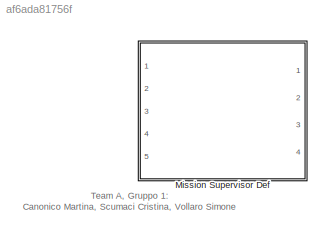
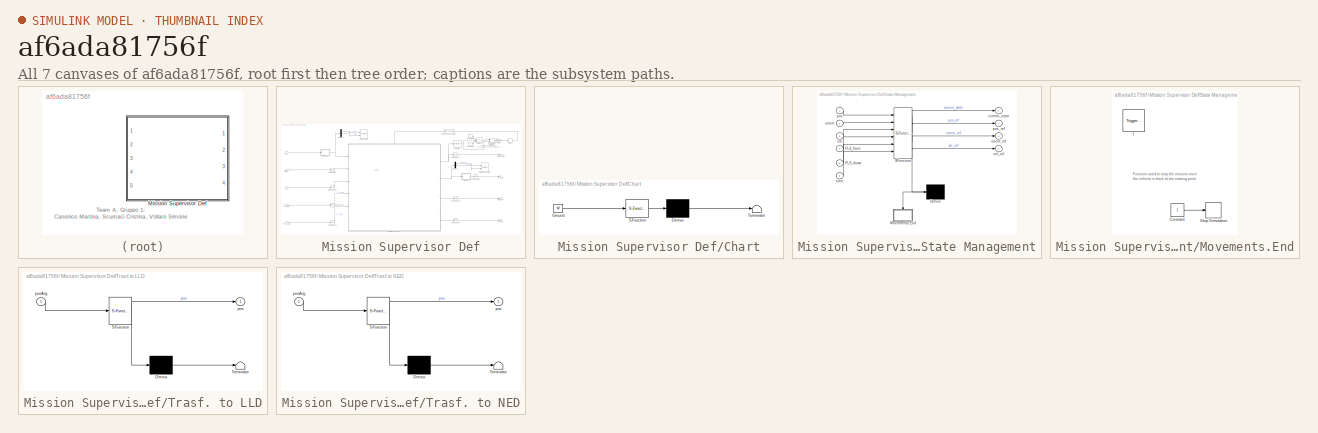
[diagram: thumbnail index - all 7 canvases of the model, root first then tree order]
MODEL slx_af6ada81756f
KIND model
CONFIG AbsTol = auto
CONFIG EnableMultiTasking = off
CONFIG FixedStep = auto
CONFIG MaxStep = auto
CONFIG MinStep = auto
CONFIG RelTol = 1e-3
CONFIG SampleTimeConstraint = Unconstrained
CONFIG Solver = VariableStepAuto
CONFIG SolverName = VariableStepAuto
CONFIG StartTime = 0.0
CONFIG StopTime = 10.0
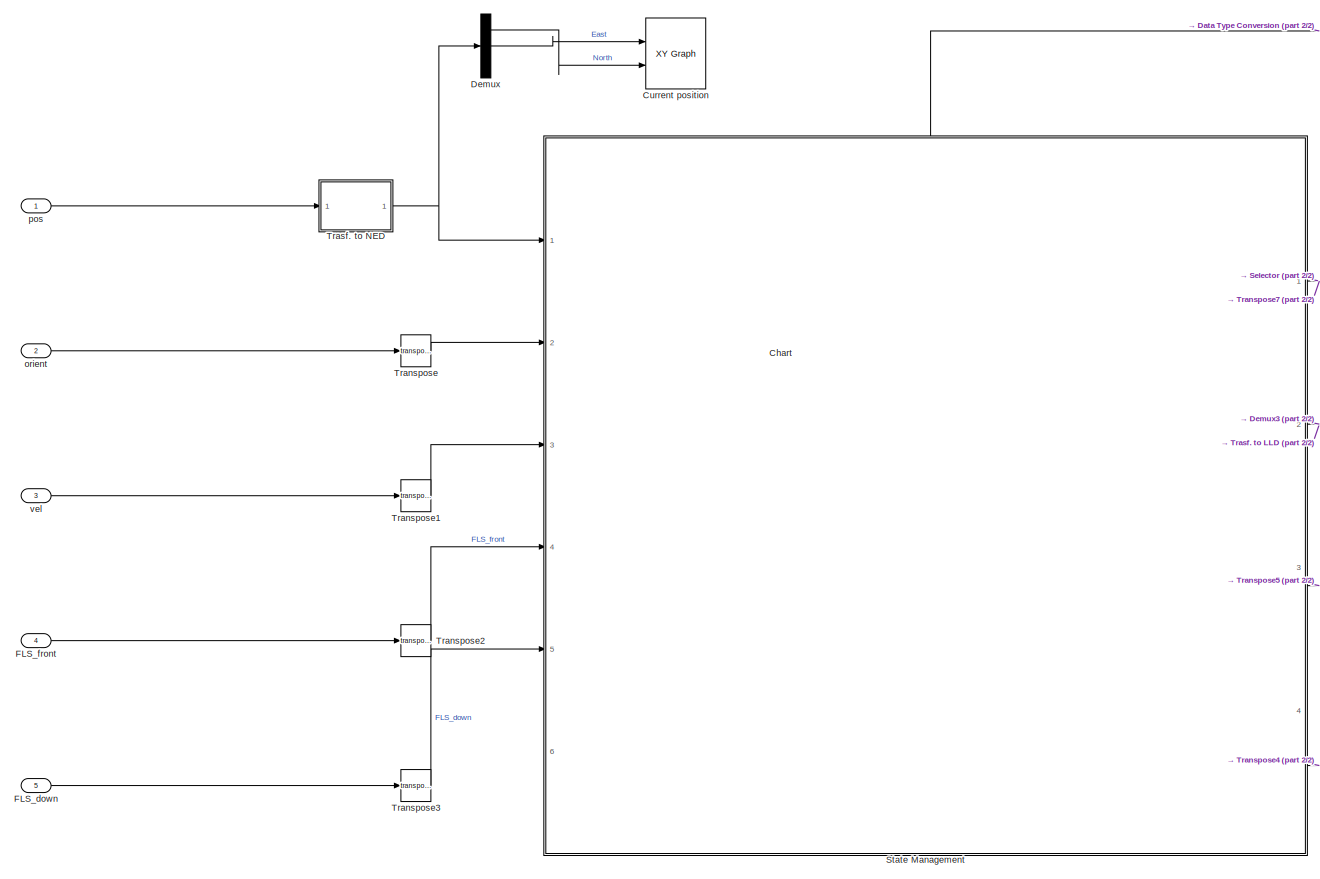
[diagram: Mission Supervisor Def - part 1/2, center side, full height]
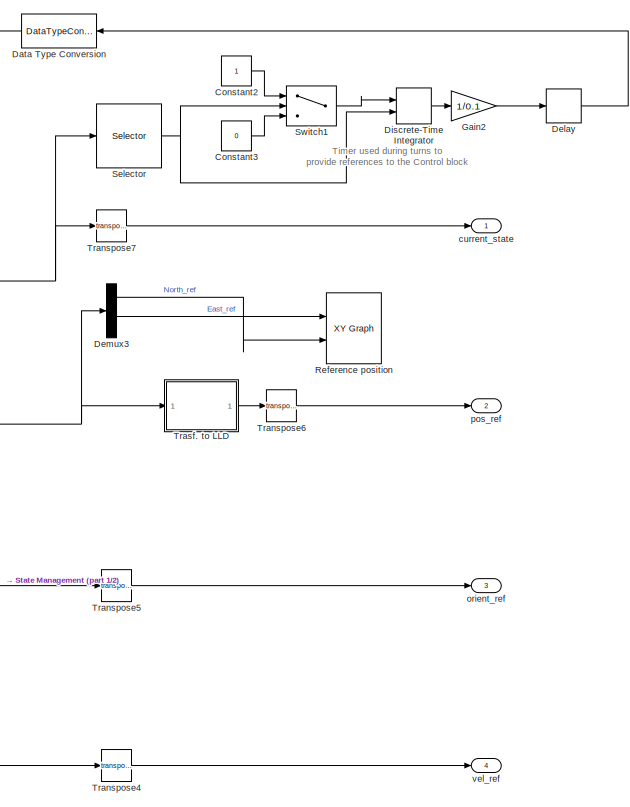
[diagram: Mission Supervisor Def - part 2/2, right side, full height]
BLOCK [SubSystem] Mission Supervisor Def
  Ports = [5, 4]
  RequestExecContextInheritance = off
BLOCK [SubSystem] Mission Supervisor Def/Chart
  ErrorFcn = Stateflow.Translate.translate
  PermitHierarchicalResolution = ExplicitOnly
  Ports = []
  RequestExecContextInheritance = off
  SFBlockType = Chart
  TreatAsAtomicUnit = on
BLOCK [Demux] Mission Supervisor Def/Chart/ Demux 
  Outputs = 1
  Ports = [1, 1]
BLOCK [Ground] Mission Supervisor Def/Chart/ Ground 
BLOCK [S-Function] Mission Supervisor Def/Chart/ SFunction 
  EnableBusSupport = on
  FunctionName = sf_sfun
  PortCounts = [1 1]
  Ports = [1, 1]
  SFcnIsStateOwnerBlock = off
  SFunctionDeploymentMode = off
  Tag = Stateflow S-Function 50
BLOCK [Terminator] Mission Supervisor Def/Chart/ Terminator 
BLOCK [Constant] Mission Supervisor Def/Constant2
BLOCK [Constant] Mission Supervisor Def/Constant3
  Value = 0
BLOCK [Reference] Mission Supervisor Def/Current position  REF=simulink/Sinks/XY Graph
  Commented = on
  Ports = [2]
  SourceBlock = simulink/Sinks/XY Graph
  SourceProductBaseCode = SL
  SourceType = XY scope.
BLOCK [DataTypeConversion] Mission Supervisor Def/Data Type Conversion
  OutDataTypeStr = int64
  RndMeth = Floor
  SaturateOnIntegerOverflow = off
BLOCK [Delay] Mission Supervisor Def/Delay
  DelayLength = 1
  InputPortMap = u0
  Ports = [1, 1]
  SampleTime = 0.1
BLOCK [Demux] Mission Supervisor Def/Demux
  Commented = on
  Outputs = 3
  Ports = [1, 3]
BLOCK [Demux] Mission Supervisor Def/Demux3
  Commented = on
  Outputs = 3
  Ports = [1, 3]
BLOCK [DiscreteIntegrator] Mission Supervisor Def/Discrete-Time Integrator
  ExternalReset = falling
  ICPrevOutput = DiscIntNeverNeededParam
  ICPrevScaledInput = DiscIntNeverNeededParam
  InitialConditionSetting = Auto
  Ports = [2, 1]
  SampleTime = 0.1
BLOCK [Inport] Mission Supervisor Def/FLS_down
  Port = 5
  PortDimensions = 1
BLOCK [Inport] Mission Supervisor Def/FLS_front
  Port = 4
  PortDimensions = 1
BLOCK [Gain] Mission Supervisor Def/Gain2
  Gain = 1/0.1
BLOCK [Reference] Mission Supervisor Def/Reference position  REF=simulink/Sinks/XY Graph
  Commented = on
  Ports = [2]
  SourceBlock = simulink/Sinks/XY Graph
  SourceProductBaseCode = SL
  SourceType = XY scope.
BLOCK [Selector] Mission Supervisor Def/Selector
  IndexOptions = Index vector (dialog)
  Indices = 4
  InputPortWidth = 8
  OutputSizes = 1
  Ports = [1, 1]
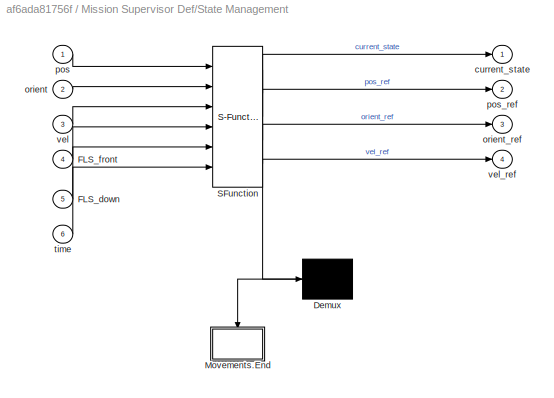
BLOCK [SubSystem] Mission Supervisor Def/State Management
  ErrorFcn = Stateflow.Translate.translate
  PermitHierarchicalResolution = ExplicitOnly
  PortSchema = {"entries":[{"content":{"sides":[{"content":{"connectorIds":["In1","In2","In3","In4","In5"]},"type":"ConnectorPlacement.EquallySpacedRectSide","uuid":"b4d768e0-b402-4324-9a12-614211dc6b85"},{"content":{"connectorIds":["Out1","Out2","Out3","Out4"],"side":"RIGHT"},"type":"ConnectorPlacement.EquallySpacedRectSide","uuid":"64a4c54a-28a4-456f-aa67-ad7da5d6855f"},{"content":{"connectorIds":["In6"],"side...<+292ch>
  Ports = [6, 4]
  RequestExecContextInheritance = off
  SFBlockType = Chart
  TreatAsAtomicUnit = on
BLOCK [Demux] Mission Supervisor Def/State Management/ Demux 
  Outputs = 1
  Ports = [1, 1]
BLOCK [S-Function] Mission Supervisor Def/State Management/ SFunction 
  EnableBusSupport = on
  FunctionName = sf_sfun
  Parameters = altitude,averageDepth,cruiseSpeed,distEmerg,endDiv,errOrDiv,errOrPos,errOrSurf,errOrTrans,errOrWPTrans,errPosDiv,errPosPos,errPosSurf,errPosTrans,errPosTransLast,errPosWPTrans,errSphere,errVelDiv,errVelSurf,lineSpaceBetweenTransects,maxRatio,minDist,minGap,nTran,nWPTran,nWPTurn,offset,offsetLast,orDes,orDesRit,orDispari,orPari,orientA,pointA,pointP,rot,safeMargin,semix,semiy,semiz,theta_f,trWP,tur...<+69ch>
  PortCounts = [6 5]
  Ports = [6, 5]
  SFcnIsStateOwnerBlock = off
  SFunctionDeploymentMode = off
  Tag = Stateflow S-Function 51
BLOCK [Inport] Mission Supervisor Def/State Management/FLS_down
  Port = 5
BLOCK [Inport] Mission Supervisor Def/State Management/FLS_front
  Port = 4
BLOCK [SubSystem] Mission Supervisor Def/State Management/Movements.End
  Ports = [0, 0, 0, 1]
  PreDeleteFcn = Stateflow.SLINSF.SimulinkMan.removePreDeleteFcn
  RequestExecContextInheritance = off
  UndoDeleteFcn = Stateflow.SLINSF.SimulinkMan.restorePreDeleteFcn
BLOCK [Constant] Mission Supervisor Def/State Management/Movements.End/Constant
BLOCK [Stop] Mission Supervisor Def/State Management/Movements.End/Stop Simulation
BLOCK [TriggerPort] Mission Supervisor Def/State Management/Movements.End/f
  CopyFcn = Stateflow.SLINSF.SimulinkMan.removeBlockPreDeleteFcn
  Ports = []
  PreDeleteFcn = Stateflow.SLINSF.SimulinkMan.unsafePredeleteFcn
  StatesWhenEnabling = held
  TriggerType = function-call
  VariantControl = (inherit)
BLOCK [Outport] Mission Supervisor Def/State Management/current_state
BLOCK [Inport] Mission Supervisor Def/State Management/orient
  Port = 2
BLOCK [Outport] Mission Supervisor Def/State Management/orient_ref
  Port = 3
BLOCK [Inport] Mission Supervisor Def/State Management/pos
BLOCK [Outport] Mission Supervisor Def/State Management/pos_ref
  Port = 2
BLOCK [Inport] Mission Supervisor Def/State Management/time
  Port = 6
BLOCK [Inport] Mission Supervisor Def/State Management/vel
  Port = 3
BLOCK [Outport] Mission Supervisor Def/State Management/vel_ref
  Port = 4
BLOCK [Switch] Mission Supervisor Def/Switch1
  Criteria = u2 > Threshold
  InputSameDT = off
  SaturateOnIntegerOverflow = off
BLOCK [Math] Mission Supervisor Def/Transpose
  Operator = transpose
  Ports = [1, 1]
BLOCK [Math] Mission Supervisor Def/Transpose1
  Operator = transpose
  Ports = [1, 1]
BLOCK [Math] Mission Supervisor Def/Transpose2
  Operator = transpose
  Ports = [1, 1]
BLOCK [Math] Mission Supervisor Def/Transpose3
  Operator = transpose
  Ports = [1, 1]
BLOCK [Math] Mission Supervisor Def/Transpose4
  Operator = transpose
  Ports = [1, 1]
BLOCK [Math] Mission Supervisor Def/Transpose5
  Operator = transpose
  Ports = [1, 1]
BLOCK [Math] Mission Supervisor Def/Transpose6
  Operator = transpose
  Ports = [1, 1]
BLOCK [Math] Mission Supervisor Def/Transpose7
  Operator = transpose
  Ports = [1, 1]
BLOCK [SubSystem] Mission Supervisor Def/Trasf. to LLD
  ErrorFcn = Stateflow.Translate.translate
  PermitHierarchicalResolution = ExplicitOnly
  Ports = [1, 1]
  RequestExecContextInheritance = off
  SFBlockType = MATLAB Function
  TreatAsAtomicUnit = on
BLOCK [Demux] Mission Supervisor Def/Trasf. to LLD/ Demux 
  Outputs = 1
  Ports = [1, 1]
BLOCK [S-Function] Mission Supervisor Def/Trasf. to LLD/ SFunction 
  EnableBusSupport = on
  FunctionName = sf_sfun
  Parameters = areaOfInterestCorner
  PortCounts = [1 2]
  Ports = [1, 2]
  SFcnIsStateOwnerBlock = off
  SFunctionDeploymentMode = off
  Tag = Stateflow S-Function 53
BLOCK [Terminator] Mission Supervisor Def/Trasf. to LLD/ Terminator 
BLOCK [Outport] Mission Supervisor Def/Trasf. to LLD/pos
BLOCK [Inport] Mission Supervisor Def/Trasf. to LLD/posArg
BLOCK [SubSystem] Mission Supervisor Def/Trasf. to NED
  ErrorFcn = Stateflow.Translate.translate
  PermitHierarchicalResolution = ExplicitOnly
  Ports = [1, 1]
  RequestExecContextInheritance = off
  SFBlockType = MATLAB Function
  TreatAsAtomicUnit = on
BLOCK [Demux] Mission Supervisor Def/Trasf. to NED/ Demux 
  Outputs = 1
  Ports = [1, 1]
BLOCK [S-Function] Mission Supervisor Def/Trasf. to NED/ SFunction 
  EnableBusSupport = on
  FunctionName = sf_sfun
  Parameters = areaOfInterestCorner
  PortCounts = [1 2]
  Ports = [1, 2]
  SFcnIsStateOwnerBlock = off
  SFunctionDeploymentMode = off
  Tag = Stateflow S-Function 52
BLOCK [Terminator] Mission Supervisor Def/Trasf. to NED/ Terminator 
BLOCK [Outport] Mission Supervisor Def/Trasf. to NED/pos
BLOCK [Inport] Mission Supervisor Def/Trasf. to NED/posArg
BLOCK [Outport] Mission Supervisor Def/current_state
BLOCK [Inport] Mission Supervisor Def/orient
  Port = 2
  PortDimensions = [3 1]
BLOCK [Outport] Mission Supervisor Def/orient_ref
  Port = 3
BLOCK [Inport] Mission Supervisor Def/pos
BLOCK [Outport] Mission Supervisor Def/pos_ref
  Port = 2
BLOCK [Inport] Mission Supervisor Def/vel
  Port = 3
  PortDimensions = [6 1]
BLOCK [Outport] Mission Supervisor Def/vel_ref
  Port = 4
  PortDimensions = [6 1]
ANNOTATION (root): Team A, Gruppo 1: Canonico Martina, Scumaci Cristina, Vollaro Simone
ANNOTATION Mission Supervisor Def: Timer used during turns to provide references to the Control block
ANNOTATION Mission Supervisor Def/State Management/Movements.End: Function used to stop the mission once the vehicle is back at the starting point
LINE Mission Supervisor Def/Constant2:1 -> Mission Supervisor Def/Switch1:1
LINE Mission Supervisor Def/Constant3:1 -> Mission Supervisor Def/Switch1:3
LINE Mission Supervisor Def/Data Type Conversion:1 -> Mission Supervisor Def/State Management:6
LINE Mission Supervisor Def/Delay:1 -> Mission Supervisor Def/Data Type Conversion:1
LINE Mission Supervisor Def/Demux3:1 -> Mission Supervisor Def/Reference position:2
LINE Mission Supervisor Def/Demux3:2 -> Mission Supervisor Def/Reference position:1
LINE Mission Supervisor Def/Demux:1 -> Mission Supervisor Def/Current position:2
LINE Mission Supervisor Def/Demux:2 -> Mission Supervisor Def/Current position:1
LINE Mission Supervisor Def/Discrete-Time Integrator:1 -> Mission Supervisor Def/Gain2:1
LINE Mission Supervisor Def/FLS_down:1 -> Mission Supervisor Def/Transpose3:1
LINE Mission Supervisor Def/FLS_front:1 -> Mission Supervisor Def/Transpose2:1
LINE Mission Supervisor Def/Gain2:1 -> Mission Supervisor Def/Delay:1
NET Mission Supervisor Def/Selector:1 -> Mission Supervisor Def/Discrete-Time Integrator:2, Mission Supervisor Def/Switch1:2
NET Mission Supervisor Def/State Management:1 -> Mission Supervisor Def/Selector:1, Mission Supervisor Def/Transpose7:1
NET Mission Supervisor Def/State Management:2 -> Mission Supervisor Def/Demux3:1, Mission Supervisor Def/Trasf. to LLD:1
LINE Mission Supervisor Def/State Management:3 -> Mission Supervisor Def/Transpose5:1
LINE Mission Supervisor Def/State Management:4 -> Mission Supervisor Def/Transpose4:1
LINE Mission Supervisor Def/Switch1:1 -> Mission Supervisor Def/Discrete-Time Integrator:1
LINE Mission Supervisor Def/Transpose1:1 -> Mission Supervisor Def/State Management:3
LINE Mission Supervisor Def/Transpose2:1 -> Mission Supervisor Def/State Management:4
LINE Mission Supervisor Def/Transpose3:1 -> Mission Supervisor Def/State Management:5
LINE Mission Supervisor Def/Transpose4:1 -> Mission Supervisor Def/vel_ref:1
LINE Mission Supervisor Def/Transpose5:1 -> Mission Supervisor Def/orient_ref:1
LINE Mission Supervisor Def/Transpose6:1 -> Mission Supervisor Def/pos_ref:1
LINE Mission Supervisor Def/Transpose7:1 -> Mission Supervisor Def/current_state:1
LINE Mission Supervisor Def/Transpose:1 -> Mission Supervisor Def/State Management:2
LINE Mission Supervisor Def/Trasf. to LLD:1 -> Mission Supervisor Def/Transpose6:1
NET Mission Supervisor Def/Trasf. to NED:1 -> Mission Supervisor Def/Demux:1, Mission Supervisor Def/State Management:1
LINE Mission Supervisor Def/orient:1 -> Mission Supervisor Def/Transpose:1
LINE Mission Supervisor Def/pos:1 -> Mission Supervisor Def/Trasf. to NED:1
LINE Mission Supervisor Def/vel:1 -> Mission Supervisor Def/Transpose1:1
note: NET lines group one-source signal fan-out (src -> all destinations, sorted); 1:1 wires keep LINE
CHART Mission Supervisor Def/Trasf. to NED states=1 transitions=1
  STATE_LABEL 'eML_blk_kernel()'
  STATE_LABEL "SCRIPT:\nfunction pos = LLD2NED(posArg,areaOfInterestCorner)\n    coder.extrinsic('evalin','wgs84Ellipsoid','geodetic2ned');\n    pos = zeros(1,3);\n    pos1 = 0;\n    pos2 = 0;\n    pos3 = 0;\n    [pos1, pos2, pos3] = geodetic2ned(posArg(1), posArg(2), posArg(3),areaOfInterestCorner(1), areaOfInterestCorner(2), 0,wgs84Ellipsoid);\n    pos = [pos1, pos2, posArg(3)];\nend    "
CHART Mission Supervisor Def/Trasf. to LLD states=1 transitions=1
  STATE_LABEL 'eML_blk_kernel()'
  STATE_LABEL "SCRIPT:\nfunction pos = NED2LLD(posArg,areaOfInterestCorner)\n    coder.extrinsic('evalin','wgs84Ellipsoid','ned2geodetic');\n    pos = zeros(1,3);\n    pos1 = 0;\n    pos2 = 0;\n    pos3 = 0;\n    [pos1, pos2, pos3] = ned2geodetic(posArg(1), posArg(2), posArg(3),areaOfInterestCorner(1), areaOfInterestCorner(2), 0,wgs84Ellipsoid);\n    pos = [pos1, pos2, posArg(3)];%-posArg(3)];\nend    "
CHART Mission Supervisor Def/Chart states=0 transitions=0
CHART Mission Supervisor Def/State Management states=74 transitions=92
  STATE_LABEL 'Movements'
  STATE_LABEL 'End'
  STATE_LABEL 'positioning\nentry:\n   current_state(1:5) = [1 0 0 0 0];\n   orBene = 0; %ENGLISH\n   velNull = 0;\n   fromFirstPos = 0;\nduring:\nif ~missionEnd %Mission just started\n    if ~checkOr([0,0,orDes],orient,errOrPos) && ~orBene\n        pos_ref = pointP;\n        orient_ref = [0,0,orDes];\n        vel_ref = [0,0,0,0,0,0];\n    else %Properly oriented\n        orBene=1;\n        pos_ref = pointA;\n        orient_re...<+169ch>'
  STATE_LABEL 'diving\nentry:\n   current_state(1:5) = [0 1 0 0 0];\n   velNull = 0;\nduring:\n%First, the vehicle stops and stabilizes in point A\nif ~(checkPos(pointA,pos, errSphere) && checkOr([0,0,orDes],orient,errOrPos) ...\n        && checkVel(zeros(1,6),[vel(1),vel(2),vel(3),0,0,0],errVelDiv)) && ~velNull\n    pos_ref = pointA;\n    orient_ref = [0,0,orDes];\n    vel_ref = zeros(1,6);\nelse\n    % Then it starts the ...<+246ch>'
  STATE_LABEL '<!DOCTYPE HTML PUBLIC "-//W3C//DTD HTML 4.0//EN" "http://www.w3.org/TR/REC-html40/strict.dtd">\n<html><head><meta name="qrichtext" content="1" /><style type="text/css">\np, li { white-space: pre-wrap; }\n</style></head><body align="left" style=" font-family:\'MS Shell Dlg 2\'; font-size:10px; font-weight:400; font-style:normal;">\n<p align="left" style=" margin-top:0px; margin-bottom:0px; margin-left:0p...<+224ch>'
  STATE_LABEL '<!DOCTYPE HTML PUBLIC "-//W3C//DTD HTML 4.0//EN" "http://www.w3.org/TR/REC-html40/strict.dtd">\n<html><head><meta name="qrichtext" content="1" /><style type="text/css">\np, li { white-space: pre-wrap; }\n</style></head><body align="left" style=" font-family:\'Helvetica\'; font-size:12px; font-weight:400; font-style:normal;">\n<p align="left" style=" margin-top:0px; margin-bottom:0px; margin-left:0px; ma...<+179ch>'
  STATE_LABEL '<!DOCTYPE HTML PUBLIC "-//W3C//DTD HTML 4.0//EN" "http://www.w3.org/TR/REC-html40/strict.dtd">\n<html><head><meta name="qrichtext" content="1" /><style type="text/css">\np, li { white-space: pre-wrap; }\n</style></head><body align="left" style=" font-family:\'Helvetica\'; font-size:12px; font-weight:400; font-style:normal;">\n<p align="left" style=" margin-top:0px; margin-bottom:0px; margin-left:0px; ma...<+175ch>'
  STATE_LABEL 'surfacing\nentry:\n   current_state(1:5) = [0 0 0 0 1];\n   velNull = 0;\nduring:\nif wall || current_state(8) %Mission aborted because of obstacles or failures\n    pos_ref = [pos(1), pos(2), 0.15];\n    vel_ref = velSurf;\nelse\n    %First the vehicle stops and stabilizes at the end of the trajectory\n    if ~checkVel(zeros(1,6),[vel(1),vel(2),vel(3),0,0,0],errVelSurf) && ~velNull\n        pos_ref = trWP(n...<+307ch>'
  STATE_LABEL '<!DOCTYPE HTML PUBLIC "-//W3C//DTD HTML 4.0//EN" "http://www.w3.org/TR/REC-html40/strict.dtd">\n<html><head><meta name="qrichtext" content="1" /><style type="text/css">\np, li { white-space: pre-wrap; }\n</style></head><body align="left" style=" font-family:\'MS Shell Dlg 2\'; font-size:10px; font-weight:400; font-style:normal;">\n<p align="left" style=" margin-top:0px; margin-bottom:0px; margin-left:0p...<+300ch>'
  STATE_LABEL '<!DOCTYPE HTML PUBLIC "-//W3C//DTD HTML 4.0//EN" "http://www.w3.org/TR/REC-html40/strict.dtd">\n<html><head><meta name="qrichtext" content="1" /><style type="text/css">\np, li { white-space: pre-wrap; }\n</style></head><body align="left" style=" font-family:\'Helvetica\'; font-size:12px; font-weight:400; font-style:normal;">\n<p align="left" style=" margin-top:0px; margin-bottom:0px; margin-left:0px; ma...<+371ch>'
  STATE_LABEL 'turn\nentry:\n   current_state(1:5) = [0 0 0 1 0];\n'
  STATE_LABEL 'ReferencePoints'
  STATE_LABEL '<!DOCTYPE HTML PUBLIC "-//W3C//DTD HTML 4.0//EN" "http://www.w3.org/TR/REC-html40/strict.dtd">\n<html><head><meta name="qrichtext" content="1" /><style type="text/css">\np, li { white-space: pre-wrap; }\n</style></head><body align="left" style=" font-family:\'Helvetica\'; font-size:12px; font-weight:400; font-style:normal;">\n<p align="left" style=" margin-top:0px; margin-bottom:0px; margin-left:0px; ma...<+144ch>'
  STATE_LABEL '<!DOCTYPE HTML PUBLIC "-//W3C//DTD HTML 4.0//EN" "http://www.w3.org/TR/REC-html40/strict.dtd">\n<html><head><meta name="qrichtext" content="1" /><style type="text/css">\np, li { white-space: pre-wrap; }\n</style></head><body align="left" style=" font-family:\'Helvetica\'; font-size:12px; font-weight:400; font-style:normal;">\n<p align="left" style=" margin-top:0px; margin-bottom:0px; margin-left:0px; ma...<+124ch>'
  STATE_LABEL '<!DOCTYPE HTML PUBLIC "-//W3C//DTD HTML 4.0//EN" "http://www.w3.org/TR/REC-html40/strict.dtd">\n<html><head><meta name="qrichtext" content="1" /><style type="text/css">\np, li { white-space: pre-wrap; }\n</style></head><body align="left" style=" font-family:\'Helvetica\'; font-size:12px; font-weight:400; font-style:normal;">\n<p align="left" style=" margin-top:0px; margin-bottom:0px; margin-left:0px; ma...<+132ch>'
  STATE_LABEL '<!DOCTYPE HTML PUBLIC "-//W3C//DTD HTML 4.0//EN" "http://www.w3.org/TR/REC-html40/strict.dtd">\n<html><head><meta name="qrichtext" content="1" /><style type="text/css">\np, li { white-space: pre-wrap; }\n</style></head><body align="left" style=" font-family:\'Helvetica\'; font-size:12px; font-weight:400; font-style:normal;">\n<p align="left" style=" margin-top:0px; margin-bottom:0px; margin-left:0px; ma...<+131ch>'
  STATE_LABEL '{pos_ref = turnWP(nWPTurn,:,page);\norient_ref = deg2rad(turnRef(nWPTurn,:,page));}'
  STATE_LABEL '[time+1<=nWPTurn]\n{pos_ref = turnWP(time+1,:,page);\norient_ref = deg2rad(turnRef(time+1,:,page));}'
  STATE_LABEL '[mod(page,2) == 0]\n{vel_ref = [0.2 0 0 0 0 -rot*0.2/(lineSpaceBetweenTransects/2)];}'
  STATE_LABEL '{vel_ref = [0.2 0 0 0 0 rot*0.2/(lineSpaceBetweenTransects/2)];}'
  STATE_LABEL 'transect\nentry:\n   current_state(1:5) = [0 0 1 0 0];\n   ptx = trWP(wpTR,:,page);\n   pos_ref = [ptx(1),ptx(2),pos(3)-(altitude-FLS_down)];\n   if mod(page,2) == 0 %Even numbered transects\n       orient_ref = orPari;\n   else\n       orient_ref = orDispari; %Odd numbered transects\n   end\n   vel_ref = velTran;'
  STATE_LABEL 'Disaligned'
  STATE_LABEL '<!DOCTYPE HTML PUBLIC "-//W3C//DTD HTML 4.0//EN" "http://www.w3.org/TR/REC-html40/strict.dtd">\n<html><head><meta name="qrichtext" content="1" /><style type="text/css">\np, li { white-space: pre-wrap; }\n</style></head><body align="left" style=" font-family:\'Helvetica\'; font-size:12px; font-weight:400; font-style:normal;">\n<p align="left" style=" margin-top:0px; margin-bottom:0px; margin-left:0px; ma...<+149ch>'
  STATE_LABEL '<!DOCTYPE HTML PUBLIC "-//W3C//DTD HTML 4.0//EN" "http://www.w3.org/TR/REC-html40/strict.dtd">\n<html><head><meta name="qrichtext" content="1" /><style type="text/css">\np, li { white-space: pre-wrap; }\n</style></head><body align="left" style=" font-family:\'Helvetica\'; font-size:12px; font-weight:400; font-style:normal;">\n<p align="left" style=" margin-top:0px; margin-bottom:0px; margin-left:0px; ma...<+117ch>'
  STATE_LABEL '<!DOCTYPE HTML PUBLIC "-//W3C//DTD HTML 4.0//EN" "http://www.w3.org/TR/REC-html40/strict.dtd">\n<html><head><meta name="qrichtext" content="1" /><style type="text/css">\np, li { white-space: pre-wrap; }\n</style></head><body align="left" style=" font-family:\'Helvetica\'; font-size:12px; font-weight:400; font-style:normal;">\n<p align="left" style=" margin-top:0px; margin-bottom:0px; margin-left:0px; ma...<+140ch>'
  STATE_LABEL '<!DOCTYPE HTML PUBLIC "-//W3C//DTD HTML 4.0//EN" "http://www.w3.org/TR/REC-html40/strict.dtd">\n<html><head><meta name="qrichtext" content="1" /><style type="text/css">\np, li { white-space: pre-wrap; }\n</style></head><body align="left" style=" font-family:\'Helvetica\'; font-size:12px; font-weight:400; font-style:normal;">\n<p align="left" style=" margin-top:0px; margin-bottom:0px; margin-left:0px; ma...<+134ch>'
  STATE_LABEL 'M = currentSwingWaypoints(puntoDes,puntoCorr,dist)'
  STATE_LABEL 'SCRIPT:\nfunction M = currentSwingWaypoints(puntoDes,puntoCorr,dist)\n%CURRENTSWINGWAYPOINTS generates additional waypoints to be used when the\n% vehicle misaligns from the desired trajectory\n%\n%   -puntoDes: desired return point onto the trajectory; 1x3 [m m m]\n%   -puntoCorr: estimated current location; 1x3 [m m m]\n%   -dist: distance between waypoints in the direction of realignment; [m]\n\n    dis...<+772ch>'
  STATE_LABEL '<!DOCTYPE HTML PUBLIC "-//W3C//DTD HTML 4.0//EN" "http://www.w3.org/TR/REC-html40/strict.dtd">\n<html><head><meta name="qrichtext" content="1" /><style type="text/css">\np, li { white-space: pre-wrap; }\n</style></head><body align="left" style=" font-family:\'Helvetica\'; font-size:12px; font-weight:400; font-style:normal;">\n<p align="left" style=" margin-top:0px; margin-bottom:0px; margin-left:0px; ma...<+129ch>'
  STATE_LABEL '<!DOCTYPE HTML PUBLIC "-//W3C//DTD HTML 4.0//EN" "http://www.w3.org/TR/REC-html40/strict.dtd">\n<html><head><meta name="qrichtext" content="1" /><style type="text/css">\np, li { white-space: pre-wrap; }\n</style></head><body align="left" style=" font-family:\'Helvetica\'; font-size:12px; font-weight:400; font-style:normal;">\n<p align="left" style=" margin-top:0px; margin-bottom:0px; margin-left:0px; ma...<+127ch>'
  STATE_LABEL '<!DOCTYPE HTML PUBLIC "-//W3C//DTD HTML 4.0//EN" "http://www.w3.org/TR/REC-html40/strict.dtd">\n<html><head><meta name="qrichtext" content="1" /><style type="text/css">\np, li { white-space: pre-wrap; }\n</style></head><body align="left" style=" font-family:\'Helvetica\'; font-size:12px; font-weight:400; font-style:normal;">\n<p align="left" style=" margin-top:0px; margin-bottom:0px; margin-left:0px; ma...<+128ch>'
  STATE_LABEL '<!DOCTYPE HTML PUBLIC "-//W3C//DTD HTML 4.0//EN" "http://www.w3.org/TR/REC-html40/strict.dtd">\n<html><head><meta name="qrichtext" content="1" /><style type="text/css">\np, li { white-space: pre-wrap; }\n</style></head><body align="left" style=" font-family:\'Helvetica\'; font-size:12px; font-weight:400; font-style:normal;">\n<p align="left" style=" margin-top:0px; margin-bottom:0px; margin-left:0px; ma...<+139ch>'
  STATE_LABEL '<!DOCTYPE HTML PUBLIC "-//W3C//DTD HTML 4.0//EN" "http://www.w3.org/TR/REC-html40/strict.dtd">\n<html><head><meta name="qrichtext" content="1" /><style type="text/css">\np, li { white-space: pre-wrap; }\n</style></head><body align="left" style=" font-family:\'Helvetica\'; font-size:12px; font-weight:400; font-style:normal;">\n<p align="left" style=" margin-top:0px; margin-bottom:0px; margin-left:0px; ma...<+134ch>'
  STATE_LABEL '{sizeEmerg = size(wpEmerg);}'
  STATE_LABEL '[~all(sizeEmerg)]'
  STATE_LABEL '{wpTR = nWPTran;}'
  STATE_LABEL '[wpTR + 2 <= nWPTran]\n{wpTR = wpTR+2;}'
  STATE_LABEL '{wpEmerg = currentSwingWaypoints(trWP(wpTR,:,page),pos,distEmerg);}'
  STATE_LABEL '{ptx = wpEmerg(idxEmerg,1:3);\npos_ref = [ptx(1),ptx(2),pos(3)-(altitude-FLS_down)];\nvel_ref = vEmergTran;}'
  STATE_LABEL '[mod(page,2) == 0]\n{orient_ref = orPari;}'
CHART  states=0 transitions=0
CHART  states=0 transitions=0
CHART  states=0 transitions=0
CHART  states=0 transitions=0
